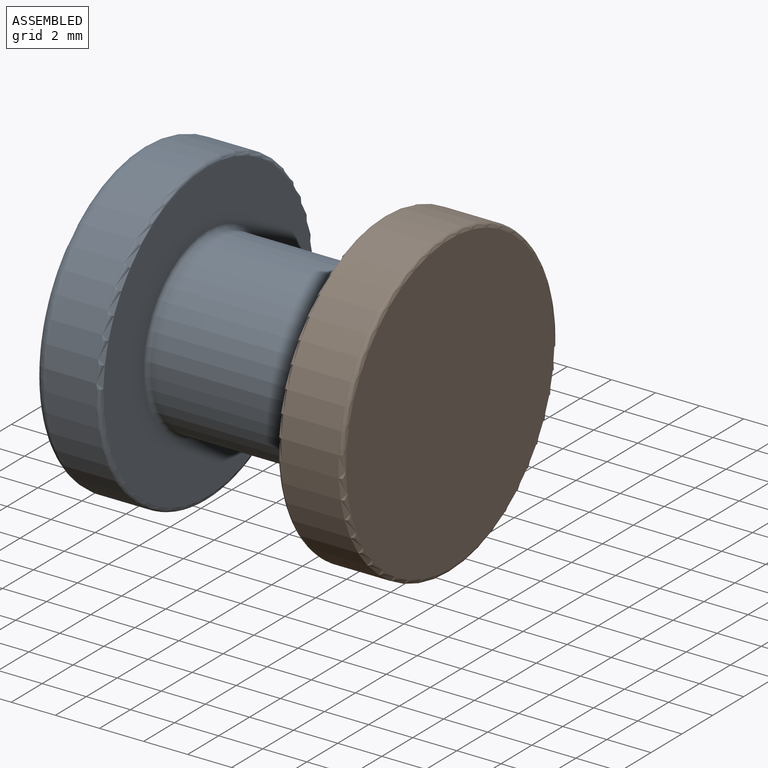
[diagram: assembled view]
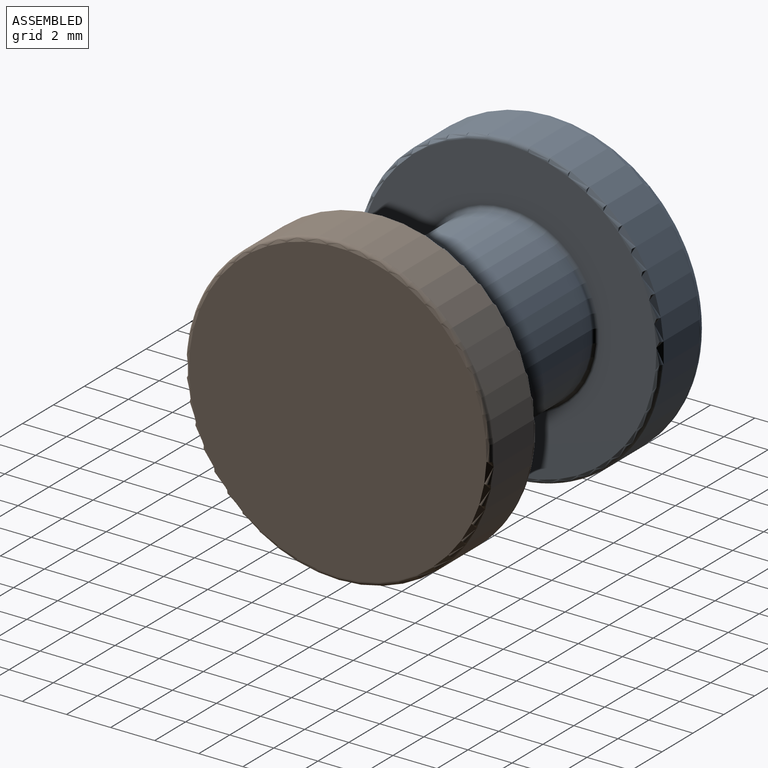
[diagram: assembled view, second angle]
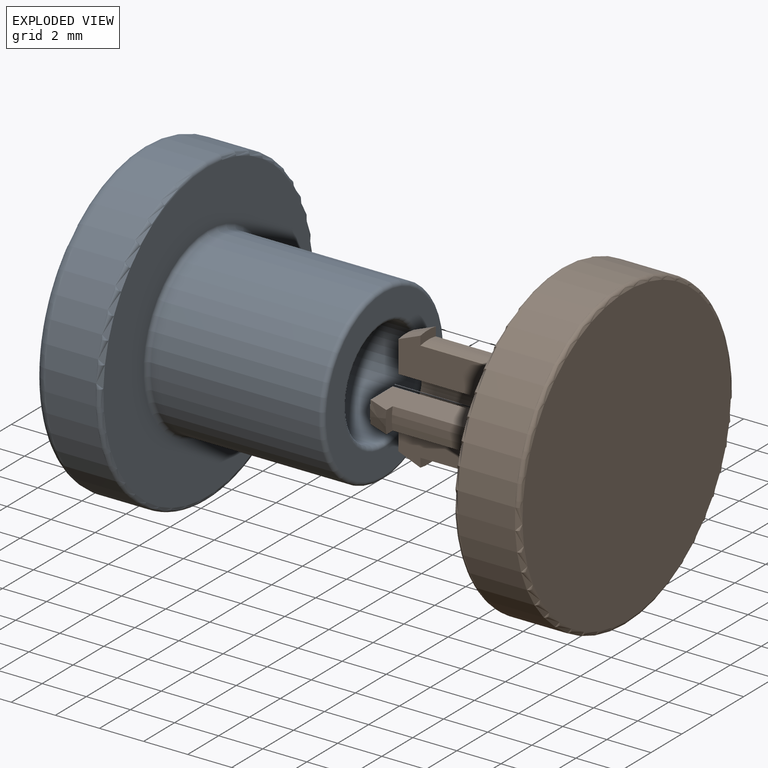
[diagram: exploded view]
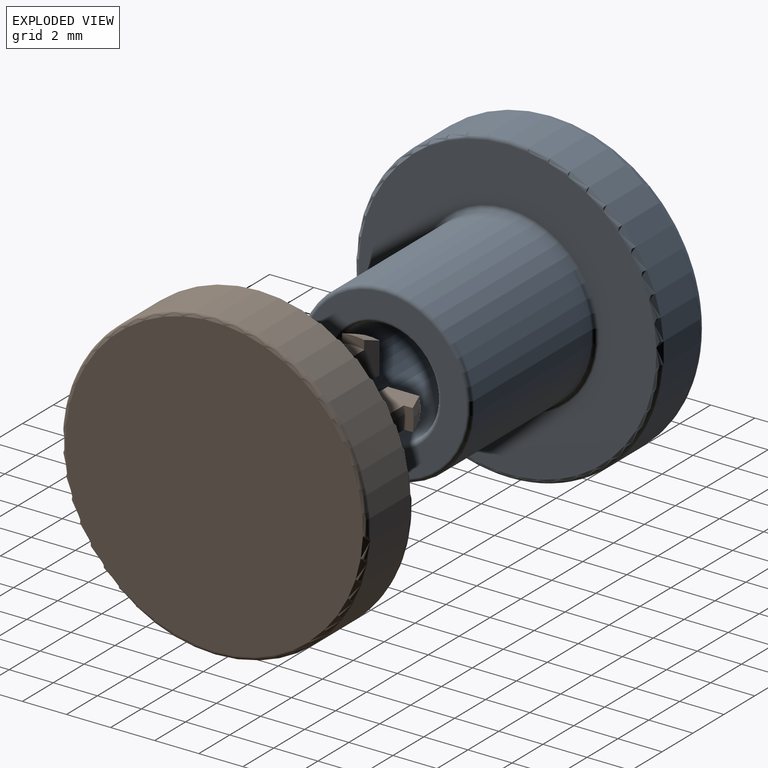
[diagram: exploded view, second angle]
ASSEMBLY  parts=2 mates=2
PART A: 16 faces, bbox 11x15x15 mm
  f0: plane 5.8x5.8mm, normal (-1,0,0), area 8.3mm2, adj f1,f11
  f1: cylinder r=2.4mm len=5.69mm, axis (-1,0,0), area 85.8mm2, adj f0,f15
  f2: plane 7.5x7.5mm, normal (1,0,0), area 22.9mm2, adj f14,f15
  f3: cylinder r=3.95mm len=7.9mm, axis (-1,0,0), area 188.6mm2, adj f13,f14
  f4: plane 13.5x13.5mm, normal (1,0,0), area 89mm2, adj f5,f13
  f5: torus R=6.75mm, axis (-1,0,0), area 13.6mm2, adj f4,f6
  f6: cylinder r=6.95mm len=13.9mm, axis (-1,0,0), area 100.4mm2, adj f5,f12
  f7: plane 12.9x12.9mm, normal (-1,0,0), area 130.7mm2, adj f12
  f8: plane 4.8x4.8mm, normal (1,0,0), area 18.1mm2, adj f9
  f9: cylinder r=2.4mm len=4.8mm, axis (-1,0,0), area 12.2mm2, adj f8,f10
  f10: cone r=2.9mm half-angle=45deg, axis (1,0,0), area 11.8mm2, adj f9,f11
  f11: cylinder r=2.9mm len=5.8mm, axis (-1,0,0), area 14.6mm2, adj f0,f10
  f12: torus R=6.45mm, axis (1,0,0), area 33.4mm2, adj f6,f7
  f13: torus R=4.15mm, axis (-1,0,0), area 7.9mm2, adj f3,f4
  f14: torus R=3.75mm, axis (1,0,0), area 7.7mm2, adj f2,f3
  f15: torus R=2.6mm, axis (1,0,0), area 4.9mm2, adj f1,f2
PART B: 32 faces, bbox 10x15.1x15.1 mm
  f0: cylinder r=1mm len=7mm, axis (-1,0,0), area 33.5mm2, adj f1,f2,f3,f4,f18,f19,f20,f21
  f1: plane 1.48x1mm, normal (1,0,0), area 1.4mm2, adj f0,f5,f26,f29
  f2: plane 1.48x1mm, normal (1,0,0), area 1.4mm2, adj f0,f6,f22,f25
  f3: plane 1.48x1mm, normal (1,0,0), area 1.4mm2, adj f0,f7,f20,f23
  f4: plane 1.48x1mm, normal (1,0,0), area 1.4mm2, adj f0,f8,f19,f28
  f5: cone r=2.75mm half-angle=21.8deg, axis (-1,0,0), area 1.1mm2, adj f1,f9,f26,f29
  f6: cone r=2.75mm half-angle=21.8deg, axis (-1,0,0), area 1.1mm2, adj f2,f10,f22,f25
  f7: cone r=2.75mm half-angle=21.8deg, axis (-1,0,0), area 1.1mm2, adj f3,f11,f20,f23
  f8: cone r=2.75mm half-angle=21.8deg, axis (-1,0,0), area 1.1mm2, adj f4,f12,f19,f28
  f9: plane 1x0.45mm, normal (-1,0,0), area 0.4mm2, adj f5,f13,f26,f29
  f10: plane 1x0.45mm, normal (-1,0,0), area 0.4mm2, adj f6,f13,f22,f25
  f11: plane 1x0.45mm, normal (-1,0,0), area 0.4mm2, adj f7,f13,f20,f23
  f12: plane 1x0.45mm, normal (-1,0,0), area 0.4mm2, adj f8,f13,f19,f28
  f13: cylinder r=2.35mm len=6mm, axis (-1,0,0), area 45.7mm2, adj f9,f10,f11,f12,f14,f19,f20,f21
  f14: plane 13.5x13.5mm, normal (1,0,0), area 125.8mm2, adj f13,f15
  f15: torus R=6.75mm, axis (-1,0,0), area 13.6mm2, adj f14,f16
  f16: cylinder r=6.95mm len=13.9mm, axis (-1,0,0), area 113.5mm2, adj f15,f31
  f17: plane 13.5x13.5mm, normal (-1,0,0), area 143.1mm2, adj f31
  f18: plane 2x2mm, normal (1,0,0), area 3.1mm2, adj f0
  f19: plane 5.01x1.84mm, normal (0,0,1), area 7.4mm2, adj f0,f4,f8,f12,f13,f21
  f20: plane 5.01x1.84mm, normal (0,1,0), area 7.4mm2, adj f0,f3,f7,f11,f13,f21
  f21: plane 1.8x1.8mm, normal (1,0,0), area 2.2mm2, adj f0,f13,f19,f20
  f22: plane 5.01x1.84mm, normal (0,0,1), area 7.4mm2, adj f0,f2,f6,f10,f13,f24
  f23: plane 5.01x1.84mm, normal (0,-1,0), area 7.4mm2, adj f0,f3,f7,f11,f13,f24
  f24: plane 1.8x1.8mm, normal (1,0,0), area 2.2mm2, adj f0,f13,f22,f23
  f25: plane 5.01x1.84mm, normal (0,0,-1), area 7.4mm2, adj f0,f2,f6,f10,f13,f27
  f26: plane 5.01x1.84mm, normal (0,-1,0), area 7.4mm2, adj f0,f1,f5,f9,f13,f27
  f27: plane 1.8x1.8mm, normal (1,0,0), area 2.2mm2, adj f0,f13,f25,f26
  f28: plane 5.01x1.84mm, normal (0,0,-1), area 7.4mm2, adj f0,f4,f8,f12,f13,f30
  f29: plane 5.01x1.84mm, normal (0,1,0), area 7.4mm2, adj f0,f1,f5,f9,f13,f30
  f30: plane 1.8x1.8mm, normal (1,0,0), area 2.2mm2, adj f0,f13,f28,f29
  f31: torus R=6.75mm, axis (1,0,0), area 13.6mm2, adj f16,f17
PLACE A t=(-2.39,22,-22.26)mm
PLACE B rot(axis=(0,0,1),180deg) t=(4.3,22,-22.26)mm
MATE planar A.f1 <-> B.f0  axis (1,0,0) through (4.3,22,-22.26)mm
MATE cylindrical A.f1 <-> B.f0  axis (-1,0,0) through (4.1,22,-22.26)mm
